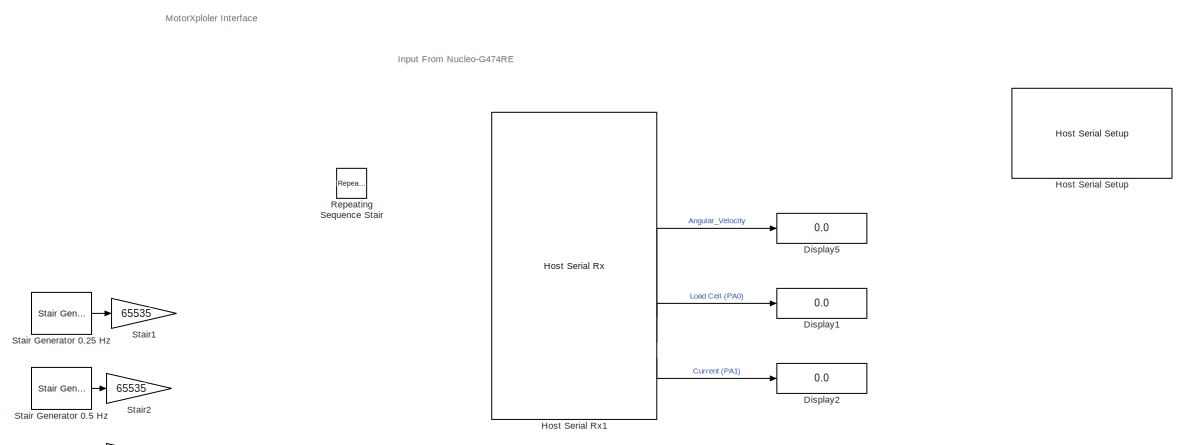
[diagram: root canvas - part 1/2, full width, top band]
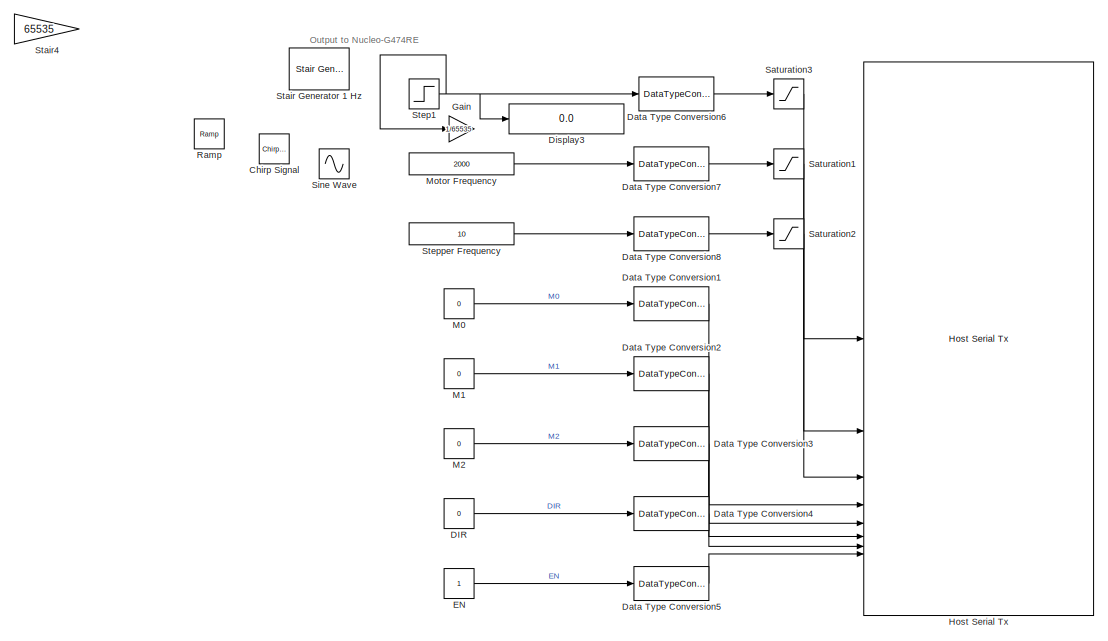
[diagram: root canvas - part 2/2, full width, bottom band]
MODEL slx_bdbaeaae927a
KIND model
CONFIG AbsTol = auto
CONFIG EnableMultiTasking = off
CONFIG FixedStep = 0.0005
CONFIG MaxStep = auto
CONFIG MinStep = auto
CONFIG RelTol = 1e-3
CONFIG SampleTimeConstraint = Unconstrained
CONFIG SolverName = FixedStepAuto
CONFIG StartTime = 0.0
CONFIG StopTime = 20
BLOCK [Reference] Chirp Signal  REF=simulink/Sources/Chirp Signal
  Commented = on
  SourceBlock = simulink/Sources/Chirp Signal
  SourceType = chirp
BLOCK [Constant] DIR
  Value = 0
BLOCK [DataTypeConversion] Data Type Conversion1
  RndMeth = Floor
  SaturateOnIntegerOverflow = off
BLOCK [DataTypeConversion] Data Type Conversion2
  RndMeth = Floor
  SaturateOnIntegerOverflow = off
BLOCK [DataTypeConversion] Data Type Conversion3
  RndMeth = Floor
  SaturateOnIntegerOverflow = off
BLOCK [DataTypeConversion] Data Type Conversion4
  RndMeth = Floor
  SaturateOnIntegerOverflow = off
BLOCK [DataTypeConversion] Data Type Conversion5
  RndMeth = Floor
  SaturateOnIntegerOverflow = off
BLOCK [DataTypeConversion] Data Type Conversion6
  RndMeth = Floor
  SaturateOnIntegerOverflow = off
BLOCK [DataTypeConversion] Data Type Conversion7
  RndMeth = Floor
  SaturateOnIntegerOverflow = off
BLOCK [DataTypeConversion] Data Type Conversion8
  RndMeth = Floor
  SaturateOnIntegerOverflow = off
BLOCK [Display] Display1
  Decimation = 1
BLOCK [Display] Display2
  Decimation = 1
BLOCK [Display] Display3
  Decimation = 1
  Format = decimal (Stored Integer)
BLOCK [Display] Display5
  Decimation = 1
BLOCK [Constant] EN
BLOCK [Gain] Gain
  Gain = 1/65535
BLOCK [Reference] Host Serial Rx1  REF=amg_usbconverter_n_connect_lib/Host Serial Rx
  SourceBlock = amg_usbconverter_n_connect_lib/Host Serial Rx
  SourceProductName = aMG USB Converter N
  SourceType = amg_usbconverter_n_connect
BLOCK [Reference] Host Serial Setup  REF=amg_usbconverter_n_connect_lib/Host Serial Setup
  SourceBlock = amg_usbconverter_n_connect_lib/Host Serial Setup
  SourceProductName = aMG USB Converter N
  SourceType = amg_usbconverter_n_connect
BLOCK [Reference] Host Serial Tx  REF=amg_usbconverter_n_connect_lib/Host Serial Tx
  SourceBlock = amg_usbconverter_n_connect_lib/Host Serial Tx
  SourceProductName = aMG USB Converter N
  SourceType = amg_usbconverter_n_connect
BLOCK [Constant] M0
  Value = 0
BLOCK [Constant] M1
  Value = 0
BLOCK [Constant] M2
  Value = 0
BLOCK [Constant] Motor Frequency
  OutDataTypeStr = single
  Value = 2000
BLOCK [Reference] Ramp  REF=simulink/Sources/Ramp
  Commented = on
  SourceBlock = simulink/Sources/Ramp
  SourceType = Ramp
BLOCK [Reference] Repeating Sequence Stair  REF=simulink/Sources/Repeating
Sequence
Stair
  Commented = on
  SourceBlock = simulink/Sources/Repeating\nSequence\nStair
  SourceType = Repeating Sequence Stair
BLOCK [Saturate] Saturation1
  LowerLimit = 0
  UpperLimit = 20000
BLOCK [Saturate] Saturation2
  LowerLimit = 0
  UpperLimit = inf
BLOCK [Saturate] Saturation3
  LowerLimit = -65535
  UpperLimit = 65535
BLOCK [Sin] Sine Wave
  Amplitude = 65535
  Commented = on
  Frequency = 0.5*2*pi
  SampleTime = 0
BLOCK [Reference] Stair Generator 0.25 Hz  REF=eeStairGenerator/Stair Generator
  Commented = on
  LibrarySourceBlock = ee_sl_lib/General Control/Stair Generator
  SourceBlock = eeStairGenerator/Stair Generator
  SourceType = Stair Generator
BLOCK [Reference] Stair Generator 0.5 Hz  REF=eeStairGenerator/Stair Generator
  Commented = on
  LibrarySourceBlock = ee_sl_lib/General Control/Stair Generator
  SourceBlock = eeStairGenerator/Stair Generator
  SourceType = Stair Generator
BLOCK [Reference] Stair Generator 1 Hz  REF=eeStairGenerator/Stair Generator
  Commented = on
  LibrarySourceBlock = ee_sl_lib/General Control/Stair Generator
  SourceBlock = eeStairGenerator/Stair Generator
  SourceType = Stair Generator
BLOCK [Gain] Stair1
  Commented = on
  Gain = 65535
BLOCK [Gain] Stair2
  Commented = on
  Gain = 65535
BLOCK [Gain] Stair4
  Commented = on
  Gain = 65535
BLOCK [Step] Step1
  After = 1*65535
  Time = 10
BLOCK [Constant] Stepper Frequency
  OutDataTypeStr = single
  Value = 10
ANNOTATION (root): Input From Nucleo-G474RE
ANNOTATION (root): MotorXploler Interface
ANNOTATION (root): Output to Nucleo-G474RE
LINE DIR:1 -> Data Type Conversion4:1
LINE Data Type Conversion1:1 -> Host Serial Tx:4
LINE Data Type Conversion2:1 -> Host Serial Tx:5
LINE Data Type Conversion3:1 -> Host Serial Tx:6
LINE Data Type Conversion4:1 -> Host Serial Tx:7
LINE Data Type Conversion5:1 -> Host Serial Tx:8
LINE Data Type Conversion6:1 -> Saturation3:1
LINE Data Type Conversion7:1 -> Saturation1:1
LINE Data Type Conversion8:1 -> Saturation2:1
LINE EN:1 -> Data Type Conversion5:1
LINE Host Serial Rx1:2 -> Display5:1
LINE Host Serial Rx1:3 -> Display1:1
LINE Host Serial Rx1:4 -> Display2:1
LINE M0:1 -> Data Type Conversion1:1
LINE M1:1 -> Data Type Conversion2:1
LINE M2:1 -> Data Type Conversion3:1
LINE Motor Frequency:1 -> Data Type Conversion7:1
LINE Saturation1:1 -> Host Serial Tx:2
LINE Saturation2:1 -> Host Serial Tx:3
LINE Saturation3:1 -> Host Serial Tx:1
LINE Stair Generator 0.25 Hz:1 -> Stair1:1
LINE Stair Generator 0.5 Hz:1 -> Stair2:1
NET Step1:1 -> Data Type Conversion6:1, Display3:1, Gain:1
LINE Stepper Frequency:1 -> Data Type Conversion8:1
note: NET lines group one-source signal fan-out (src -> all destinations, sorted); 1:1 wires keep LINE
